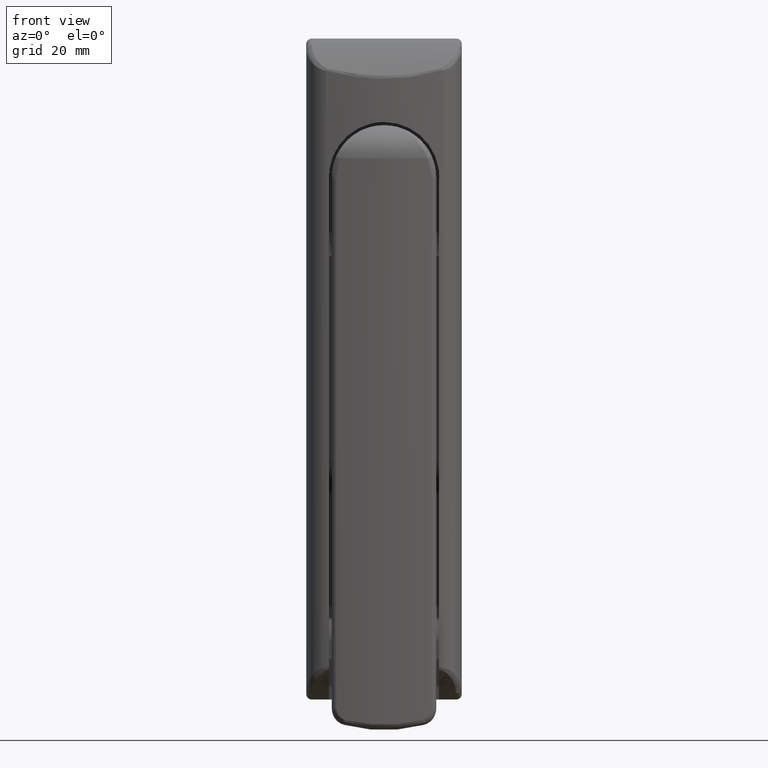
[diagram: clean part render]
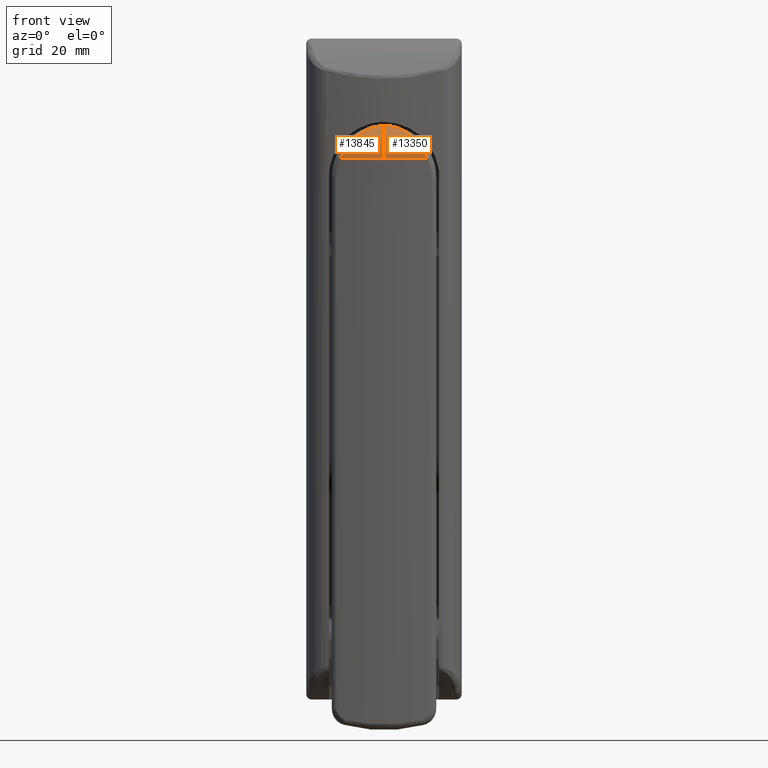
[diagram: same view with one multi-face feature highlighted, each face labeled with its STEP entity id]
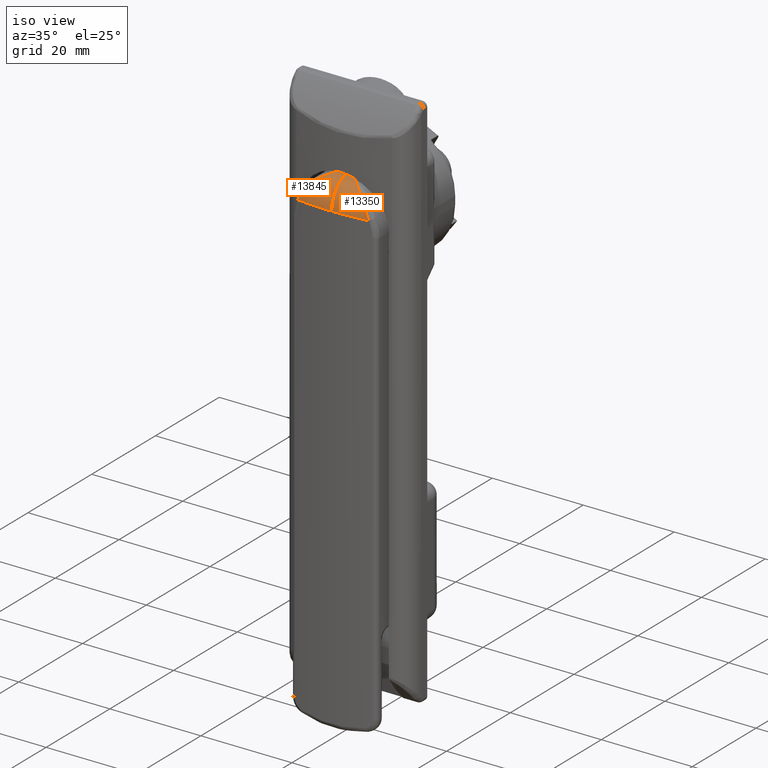
[diagram: same view with one multi-face feature highlighted, each face labeled with its STEP entity id]
A machine part, front view. The highlighted faces form ONE feature: a constant-radius fillet chain: 2 tangent blend faces with common blend radius 6 mm. The faces share edges in the B-rep.
A second angle (iso view) of the same feature is appended — it is thin or edge-on in the first view.
Their STEP definitions:
[1] entity #13350 (Torus):
#13018 = EDGE_LOOP ( 'NONE', ( #13019, #13023, #13026 ) ) ;
#13019 = ORIENTED_EDGE ( 'NONE', *, *, #13020, .T. ) ;
#13020 = EDGE_CURVE ( 'NONE', #13021, #13022, #20817, .T. ) ;
#13021 = VERTEX_POINT ( 'NONE', #20816 ) ;
#13022 = VERTEX_POINT ( 'NONE', #20818 ) ;
#13023 = ORIENTED_EDGE ( 'NONE', *, *, #13024, .T. ) ;
#13024 = EDGE_CURVE ( 'NONE', #13022, #13025, #20813, .T. ) ;
#13025 = VERTEX_POINT ( 'NONE', #20845 ) ;
#13026 = ORIENTED_EDGE ( 'NONE', *, *, #13027, .F. ) ;
#13027 = EDGE_CURVE ( 'NONE', #13021, #13025, #20843, .T. ) ;
#13350 = ADVANCED_FACE ( 'NONE', ( #21494 ), #21493, .T. ) ;
#20792 = CARTESIAN_POINT ( 'NONE',  ( -21.67107974785168500, -0.1848192811815284600, 9.399999999995630500 ) ) ;
#20793 = CARTESIAN_POINT ( 'NONE',  ( -21.84471313469677200, -0.3736754617539409000, 9.392546937894087100 ) ) ;
#20794 = CARTESIAN_POINT ( 'NONE',  ( -22.18663739008685800, -0.7487548806957135000, 9.362550964171379800 ) ) ;
#20795 = CARTESIAN_POINT ( 'NONE',  ( -22.35657366495902900, -0.9367294401220543900, 9.339978644086489400 ) ) ;
#20796 = CARTESIAN_POINT ( 'NONE',  ( -22.85955330535137300, -1.498336858000469500, 9.249840285361411700 ) ) ;
#20797 = CARTESIAN_POINT ( 'NONE',  ( -23.18696631137673900, -1.870926823312846200, 9.159924963969528400 ) ) ;
#20798 = CARTESIAN_POINT ( 'NONE',  ( -23.82399215140121700, -2.613392461333356100, 8.917679810352392900 ) ) ;
#20799 = CARTESIAN_POINT ( 'NONE',  ( -24.13492943001744400, -2.984859752763862500, 8.764581167721528800 ) ) ;
#20800 = CARTESIAN_POINT ( 'NONE',  ( -24.72974264499280700, -3.718753664731108400, 8.391777668127424800 ) ) ;
#20801 = CARTESIAN_POINT ( 'NONE',  ( -25.00996750626771700, -4.076564974871629100, 8.174712647541342700 ) ) ;
#20802 = CARTESIAN_POINT ( 'NONE',  ( -25.53210042673127200, -4.773814229309108400, 7.674991707323265200 ) ) ;
#20803 = CARTESIAN_POINT ( 'NONE',  ( -25.77410860112432500, -5.113261755577943800, 7.392453544277506300 ) ) ;
#20804 = CARTESIAN_POINT ( 'NONE',  ( -26.21130737705825500, -5.772343882809694000, 6.750914103410877900 ) ) ;
#20805 = CARTESIAN_POINT ( 'NONE',  ( -26.40183911679062600, -6.085168876272017100, 6.398053004394415500 ) ) ;
#20806 = CARTESIAN_POINT ( 'NONE',  ( -26.71237794407956300, -6.667753820039888700, 5.631188953430303500 ) ) ;
#20807 = CARTESIAN_POINT ( 'NONE',  ( -26.83358404217397100, -6.940884855977270000, 5.211167021162110800 ) ) ;
#20808 = CARTESIAN_POINT ( 'NONE',  ( -26.98277062011786900, -7.421480607561997900, 4.336230998220132800 ) ) ;
#20809 = DIRECTION ( 'NONE',  ( 0.0000000000000000000, 0.0000000000000000000, -1.000000000000000000 ) ) ;
#20810 = DIRECTION ( 'NONE',  ( 0.0000000000000000000, -1.000000000000000000, 0.0000000000000000000 ) ) ;
#20811 = CARTESIAN_POINT ( 'NONE',  ( -21.50000000006330200, -7.389644451905040300E-012, 3.399999999995630100 ) ) ;
#20812 = AXIS2_PLACEMENT_3D ( 'NONE', #20811, #20810, #20809 ) ;
#20813 = CIRCLE ( 'NONE', #20812, 6.000000000000000000 ) ;
#20814 = CARTESIAN_POINT ( 'NONE',  ( -27.01293495682544300, -7.631735377386402100, 3.878777453940417600 ) ) ;
#20815 = CARTESIAN_POINT ( 'NONE',  ( -26.98935241583240000, -7.811334658849309800, 3.399999999995630100 ) ) ;
#20816 = CARTESIAN_POINT ( 'NONE',  ( -26.98935241583240000, -7.811334658849309800, 3.399999999995630100 ) ) ;
#20817 = B_SPLINE_CURVE_WITH_KNOTS ( 'NONE', 3,
 ( #20815, #20814, #20808, #20807, #20806, #20805, #20804, #20803, #20802, #20801, #20800, #20799, #20798, #20797, #20796, #20795, #20794, #20793, #20792, #20846 ),
 .UNSPECIFIED., .F., .F.,
 ( 4, 2, 2, 2, 2, 2, 2, 2, 2, 4 ),
 ( 0.0000000000000000000, 0.001511076089204897500, 0.003022152178409794900, 0.004533228267614691900, 0.006044304356819589800, 0.007555380446024487700, 0.009066456535229383900, 0.01057753262443428100, 0.01133307066903673300, 0.01208860871363918500 ),
 .UNSPECIFIED. ) ;
#20818 = CARTESIAN_POINT ( 'NONE',  ( -21.50000000006329900, -5.204170427930419700E-015, 9.399999999995619900 ) ) ;
#20839 = DIRECTION ( 'NONE',  ( -1.000000000000000000, 0.0000000000000000000, 0.0000000000000000000 ) ) ;
#20840 = DIRECTION ( 'NONE',  ( 0.0000000000000000000, 0.0000000000000000000, -1.000000000000000000 ) ) ;
#20841 = CARTESIAN_POINT ( 'NONE',  ( 32.49999999993669800, -7.389644451905040300E-012, 3.399999999995630100 ) ) ;
#20842 = AXIS2_PLACEMENT_3D ( 'NONE', #20841, #20840, #20839 ) ;
#20843 = CIRCLE ( 'NONE', #20842, 60.00000000000000000 ) ;
#20845 = CARTESIAN_POINT ( 'NONE',  ( -27.50000000006329900, -7.389644451905040300E-012, 3.399999999995630100 ) ) ;
#20846 = CARTESIAN_POINT ( 'NONE',  ( -21.50000000006329900, -5.204170427930419700E-015, 9.399999999995619900 ) ) ;
#21489 = DIRECTION ( 'NONE',  ( -1.000000000000000000, 0.0000000000000000000, 0.0000000000000000000 ) ) ;
#21490 = DIRECTION ( 'NONE',  ( 0.0000000000000000000, 0.0000000000000000000, -1.000000000000000000 ) ) ;
#21491 = CARTESIAN_POINT ( 'NONE',  ( 32.49999999993669800, -7.389644451905040300E-012, 3.399999999995630100 ) ) ;
#21492 = AXIS2_PLACEMENT_3D ( 'NONE', #21491, #21490, #21489 ) ;
#21493 = TOROIDAL_SURFACE ( 'NONE', #21492, 54.00000000000000000, 6.000000000000000000 ) ;
#21494 = FACE_OUTER_BOUND ( 'NONE', #13018, .T. ) ;
[2] entity #13845 (Torus):
#13022 = VERTEX_POINT ( 'NONE', #20818 ) ;
#13024 = EDGE_CURVE ( 'NONE', #13022, #13025, #20813, .T. ) ;
#13025 = VERTEX_POINT ( 'NONE', #20845 ) ;
#13708 = EDGE_CURVE ( 'NONE', #13025, #13709, #23894, .T. ) ;
#13709 = VERTEX_POINT ( 'NONE', #23890 ) ;
#13795 = ORIENTED_EDGE ( 'NONE', *, *, #13024, .F. ) ;
#13796 = ORIENTED_EDGE ( 'NONE', *, *, #13797, .T. ) ;
#13797 = EDGE_CURVE ( 'NONE', #13022, #13709, #24659, .T. ) ;
#13798 = ORIENTED_EDGE ( 'NONE', *, *, #13708, .F. ) ;
#13845 = ADVANCED_FACE ( 'NONE', ( #24990 ), #24989, .T. ) ;
#13846 = EDGE_LOOP ( 'NONE', ( #13795, #13796, #13798 ) ) ;
#20809 = DIRECTION ( 'NONE',  ( 0.0000000000000000000, 0.0000000000000000000, -1.000000000000000000 ) ) ;
#20810 = DIRECTION ( 'NONE',  ( 0.0000000000000000000, -1.000000000000000000, 0.0000000000000000000 ) ) ;
#20811 = CARTESIAN_POINT ( 'NONE',  ( -21.50000000006330200, -7.389644451905040300E-012, 3.399999999995630100 ) ) ;
#20812 = AXIS2_PLACEMENT_3D ( 'NONE', #20811, #20810, #20809 ) ;
#20813 = CIRCLE ( 'NONE', #20812, 6.000000000000000000 ) ;
#20818 = CARTESIAN_POINT ( 'NONE',  ( -21.50000000006329900, -5.204170427930419700E-015, 9.399999999995619900 ) ) ;
#20845 = CARTESIAN_POINT ( 'NONE',  ( -27.50000000006329900, -7.389644451905040300E-012, 3.399999999995630100 ) ) ;
#23890 = CARTESIAN_POINT ( 'NONE',  ( -26.98935241583044900, 7.811334658849550500, 3.399999999995630100 ) ) ;
#23891 = DIRECTION ( 'NONE',  ( -1.000000000000000000, 0.0000000000000000000, 0.0000000000000000000 ) ) ;
#23892 = DIRECTION ( 'NONE',  ( 0.0000000000000000000, 0.0000000000000000000, -1.000000000000000000 ) ) ;
#23893 = AXIS2_PLACEMENT_3D ( 'NONE', #23898, #23892, #23891 ) ;
#23894 = CIRCLE ( 'NONE', #23893, 60.00000000000000000 ) ;
#23898 = CARTESIAN_POINT ( 'NONE',  ( 32.49999999993669800, -7.389644451905040300E-012, 3.399999999995630100 ) ) ;
#24637 = CARTESIAN_POINT ( 'NONE',  ( -26.98935241583044900, 7.811334658849550500, 3.399999999995630100 ) ) ;
#24638 = CARTESIAN_POINT ( 'NONE',  ( -27.01293461086978100, 7.631738012092007800, 3.878770430318077900 ) ) ;
#24639 = CARTESIAN_POINT ( 'NONE',  ( -26.98277148418271000, 7.421486770271555700, 4.336217571223078200 ) ) ;
#24640 = CARTESIAN_POINT ( 'NONE',  ( -26.83358974370839100, 6.940899844118920500, 5.211141942434012200 ) ) ;
#24641 = CARTESIAN_POINT ( 'NONE',  ( -26.71238729387233600, 6.667773993081734600, 5.631158943099810800 ) ) ;
#24642 = CARTESIAN_POINT ( 'NONE',  ( -26.40185710027570200, 6.085199981939013900, 6.398015515597604600 ) ) ;
#24643 = CARTESIAN_POINT ( 'NONE',  ( -26.21133094530539500, 5.772381679597423000, 6.750873057578365500 ) ) ;
#24644 = CARTESIAN_POINT ( 'NONE',  ( -25.77414275560062900, 5.113310976756185500, 7.392409887726313600 ) ) ;
#24645 = CARTESIAN_POINT ( 'NONE',  ( -25.53214028831638100, 4.773869402136633700, 7.674947511220091600 ) ) ;
#24646 = CARTESIAN_POINT ( 'NONE',  ( -25.01001955999893800, 4.076632544862116300, 8.174668872625513700 ) ) ;
#24647 = CARTESIAN_POINT ( 'NONE',  ( -24.72980118494923500, 3.718827679860687900, 8.391734854666726300 ) ) ;
#24648 = CARTESIAN_POINT ( 'NONE',  ( -24.13500177734807700, 2.984947229706170100, 8.764541945276729300 ) ) ;
#24649 = CARTESIAN_POINT ( 'NONE',  ( -23.82407000875957700, 2.613484801846639900, 8.917644076196046000 ) ) ;
#24650 = CARTESIAN_POINT ( 'NONE',  ( -23.18705666561610500, 1.871030537014080300, 9.159896729802209600 ) ) ;
#24651 = CARTESIAN_POINT ( 'NONE',  ( -22.85965005387689400, 1.498446332445289900, 9.249816491394234700 ) ) ;
#24652 = CARTESIAN_POINT ( 'NONE',  ( -22.18902363845295200, 0.7496481773882532900, 9.370011530724454500 ) ) ;
#24653 = CARTESIAN_POINT ( 'NONE',  ( -21.84549359178381100, 0.3732404220714915500, 9.399999999995628700 ) ) ;
#24658 = CARTESIAN_POINT ( 'NONE',  ( -21.50000000006329900, -5.204170427930419700E-015, 9.399999999995619900 ) ) ;
#24659 = B_SPLINE_CURVE_WITH_KNOTS ( 'NONE', 3,
 ( #24658, #24653, #24652, #24651, #24650, #24649, #24648, #24647, #24646, #24645, #24644, #24643, #24642, #24641, #24640, #24639, #24638, #24637 ),
 .UNSPECIFIED., .F., .F.,
 ( 4, 2, 2, 2, 2, 2, 2, 2, 4 ),
 ( -1.834899670613978600E-005, 0.001507451433098431000, 0.003033251862903001500, 0.004559052292707571800, 0.006084852722512143000, 0.007610653152316714100, 0.009136453582121284400, 0.01066225401192585600, 0.01218805444173042700 ),
 .UNSPECIFIED. ) ;
#24974 = DIRECTION ( 'NONE',  ( -1.000000000000000000, 0.0000000000000000000, 0.0000000000000000000 ) ) ;
#24975 = DIRECTION ( 'NONE',  ( 0.0000000000000000000, 0.0000000000000000000, -1.000000000000000000 ) ) ;
#24986 = AXIS2_PLACEMENT_3D ( 'NONE', #24987, #24975, #24974 ) ;
#24987 = CARTESIAN_POINT ( 'NONE',  ( 32.49999999993669800, -7.389644451905040300E-012, 3.399999999995630100 ) ) ;
#24989 = TOROIDAL_SURFACE ( 'NONE', #24986, 54.00000000000000000, 6.000000000000000000 ) ;
#24990 = FACE_OUTER_BOUND ( 'NONE', #13846, .T. ) ;